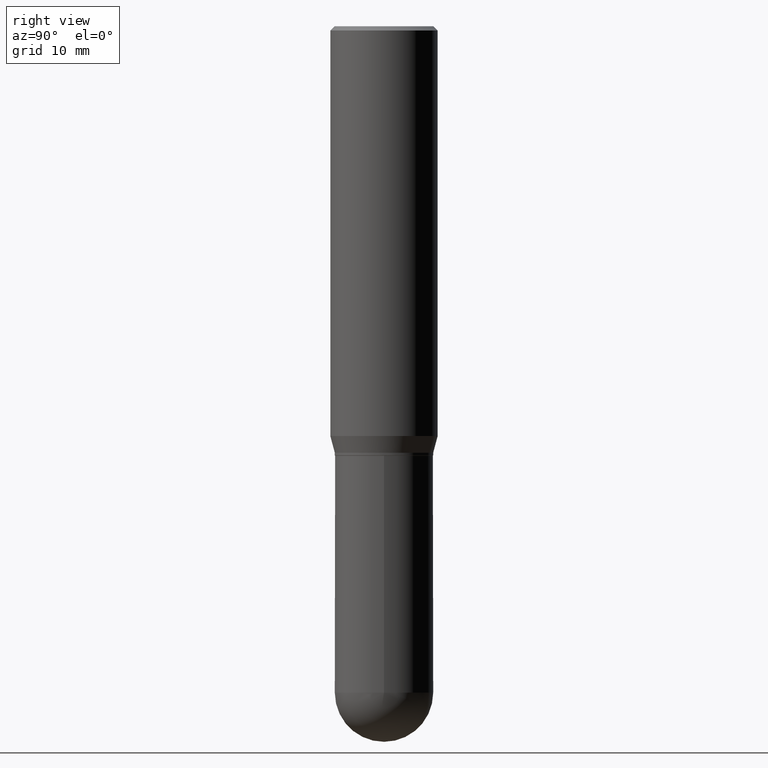
[diagram: clean part render]
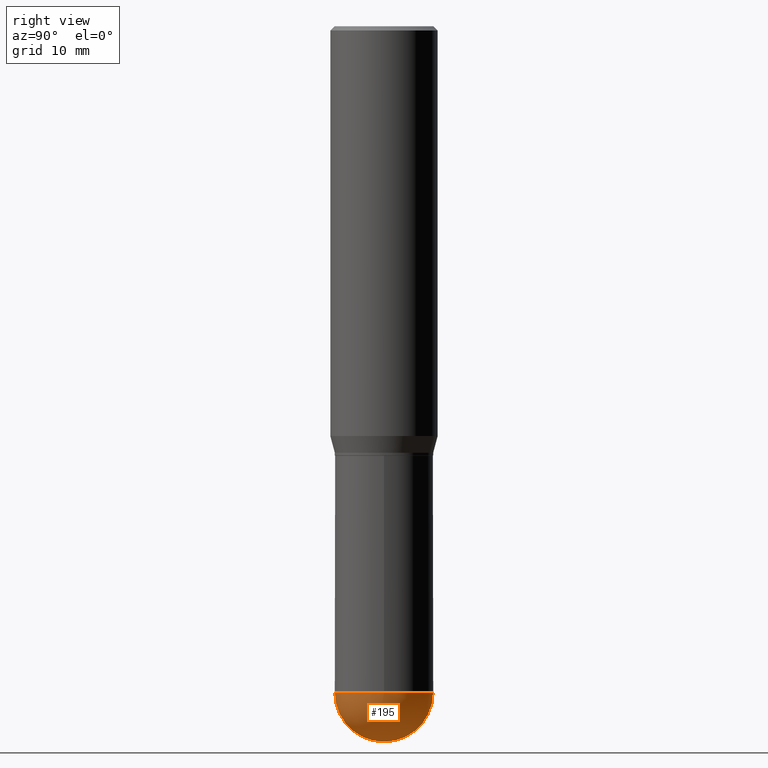
[diagram: same view with one face highlighted and labeled with its STEP entity id]
A machine part, right view. The second image highlights one B-rep face of the part: STEP entity #195.
In plain terms, the highlighted spherical surface has radius 4.3663 mm.
Its self-contained STEP definition (entity closure, byte-faithful):
#12 = CIRCLE ( 'NONE', #130, 0.1719000000000000250 ) ;
#13 = DIRECTION ( 'NONE',  ( 6.982962677686266711E-15, 1.000000000000000000, 0.000000000000000000 ) ) ;
#16 = ORIENTED_EDGE ( 'NONE', *, *, #237, .F. ) ;
#22 = DIRECTION ( 'NONE',  ( -2.445468806185136597E-29, 3.491481338843145583E-15, 1.000000000000000000 ) ) ;
#27 = CARTESIAN_POINT ( 'NONE',  ( 1.200371284294326039E-15, 0.1718999999999918094, -2.328100000000000946 ) ) ;
#40 = ORIENTED_EDGE ( 'NONE', *, *, #474, .F. ) ;
#44 = AXIS2_PLACEMENT_3D ( 'NONE', #210, #22, #185 ) ;
#73 = EDGE_LOOP ( 'NONE', ( #40, #211, #16, #152 ) ) ;
#85 = CARTESIAN_POINT ( 'NONE',  ( 5.678595619168622984E-29, -8.149569383438070914E-15, -2.328100000000000058 ) ) ;
#91 = CARTESIAN_POINT ( 'NONE',  ( 6.106321861207344902E-29, -8.739229186346536619E-15, -2.500000000000000000 ) ) ;
#100 = CIRCLE ( 'NONE', #225, 0.1718999999999999417 ) ;
#106 = VERTEX_POINT ( 'NONE', #91 ) ;
#119 = CIRCLE ( 'NONE', #44, 0.1719000000000000250 ) ;
#130 = AXIS2_PLACEMENT_3D ( 'NONE', #316, #163, #319 ) ;
#132 = CARTESIAN_POINT ( 'NONE',  ( 5.678595619168622984E-29, -8.149569383438070914E-15, -2.328100000000000058 ) ) ;
#136 = VERTEX_POINT ( 'NONE', #494 ) ;
#152 = ORIENTED_EDGE ( 'NONE', *, *, #161, .F. ) ;
#161 = EDGE_CURVE ( 'NONE', #507, #136, #119, .T. ) ;
#163 = DIRECTION ( 'NONE',  ( -2.445468806185136597E-29, 3.491481338843145583E-15, 1.000000000000000000 ) ) ;
#185 = DIRECTION ( 'NONE',  ( 1.000000000000000000, -6.982962677686271444E-15, 0.000000000000000000 ) ) ;
#195 = ADVANCED_FACE ( 'NONE', ( #343 ), #349, .T. ) ;
#203 = DIRECTION ( 'NONE',  ( -1.000000000000000000, 7.105427357601001070E-15, -4.926315508542082329E-29 ) ) ;
#210 = CARTESIAN_POINT ( 'NONE',  ( 5.693295927679617284E-29, -8.128517704960729139E-15, -2.328100000000000058 ) ) ;
#211 = ORIENTED_EDGE ( 'NONE', *, *, #275, .T. ) ;
#225 = AXIS2_PLACEMENT_3D ( 'NONE', #85, #203, #366 ) ;
#237 = EDGE_CURVE ( 'NONE', #136, #379, #12, .T. ) ;
#263 = DIRECTION ( 'NONE',  ( 6.982962677686265922E-15, 1.000000000000000000, -3.178415350394722463E-15 ) ) ;
#275 = EDGE_CURVE ( 'NONE', #106, #379, #362, .T. ) ;
#276 = CARTESIAN_POINT ( 'NONE',  ( -1.221422962771555008E-15, -0.1719000000000081296, -2.328099999999999614 ) ) ;
#314 = AXIS2_PLACEMENT_3D ( 'NONE', #498, #455, #263 ) ;
#316 = CARTESIAN_POINT ( 'NONE',  ( 5.693295927679617284E-29, -8.128517704960729139E-15, -2.328100000000000058 ) ) ;
#319 = DIRECTION ( 'NONE',  ( 1.000000000000000000, -6.982962677686271444E-15, 0.000000000000000000 ) ) ;
#343 = FACE_OUTER_BOUND ( 'NONE', #73, .T. ) ;
#349 = SPHERICAL_SURFACE ( 'NONE', #314, 0.1718999999999999417 ) ;
#362 = CIRCLE ( 'NONE', #391, 0.1718999999999999417 ) ;
#366 = DIRECTION ( 'NONE',  ( -7.105427357601001070E-15, -1.000000000000000000, 0.000000000000000000 ) ) ;
#377 = DIRECTION ( 'NONE',  ( 1.000000000000000000, -6.982962677686265922E-15, 4.883557194083112340E-29 ) ) ;
#379 = VERTEX_POINT ( 'NONE', #27 ) ;
#391 = AXIS2_PLACEMENT_3D ( 'NONE', #132, #377, #13 ) ;
#455 = DIRECTION ( 'NONE',  ( -1.000000000000000000, 6.982962677686265922E-15, -4.883557194083112340E-29 ) ) ;
#474 = EDGE_CURVE ( 'NONE', #106, #507, #100, .T. ) ;
#494 = CARTESIAN_POINT ( 'NONE',  ( 0.1719000000000000250, -7.883241140906993293E-15, -2.328100000000000058 ) ) ;
#498 = CARTESIAN_POINT ( 'NONE',  ( 5.678595619168622984E-29, -8.149569383438070914E-15, -2.328100000000000058 ) ) ;
#507 = VERTEX_POINT ( 'NONE', #276 ) ;